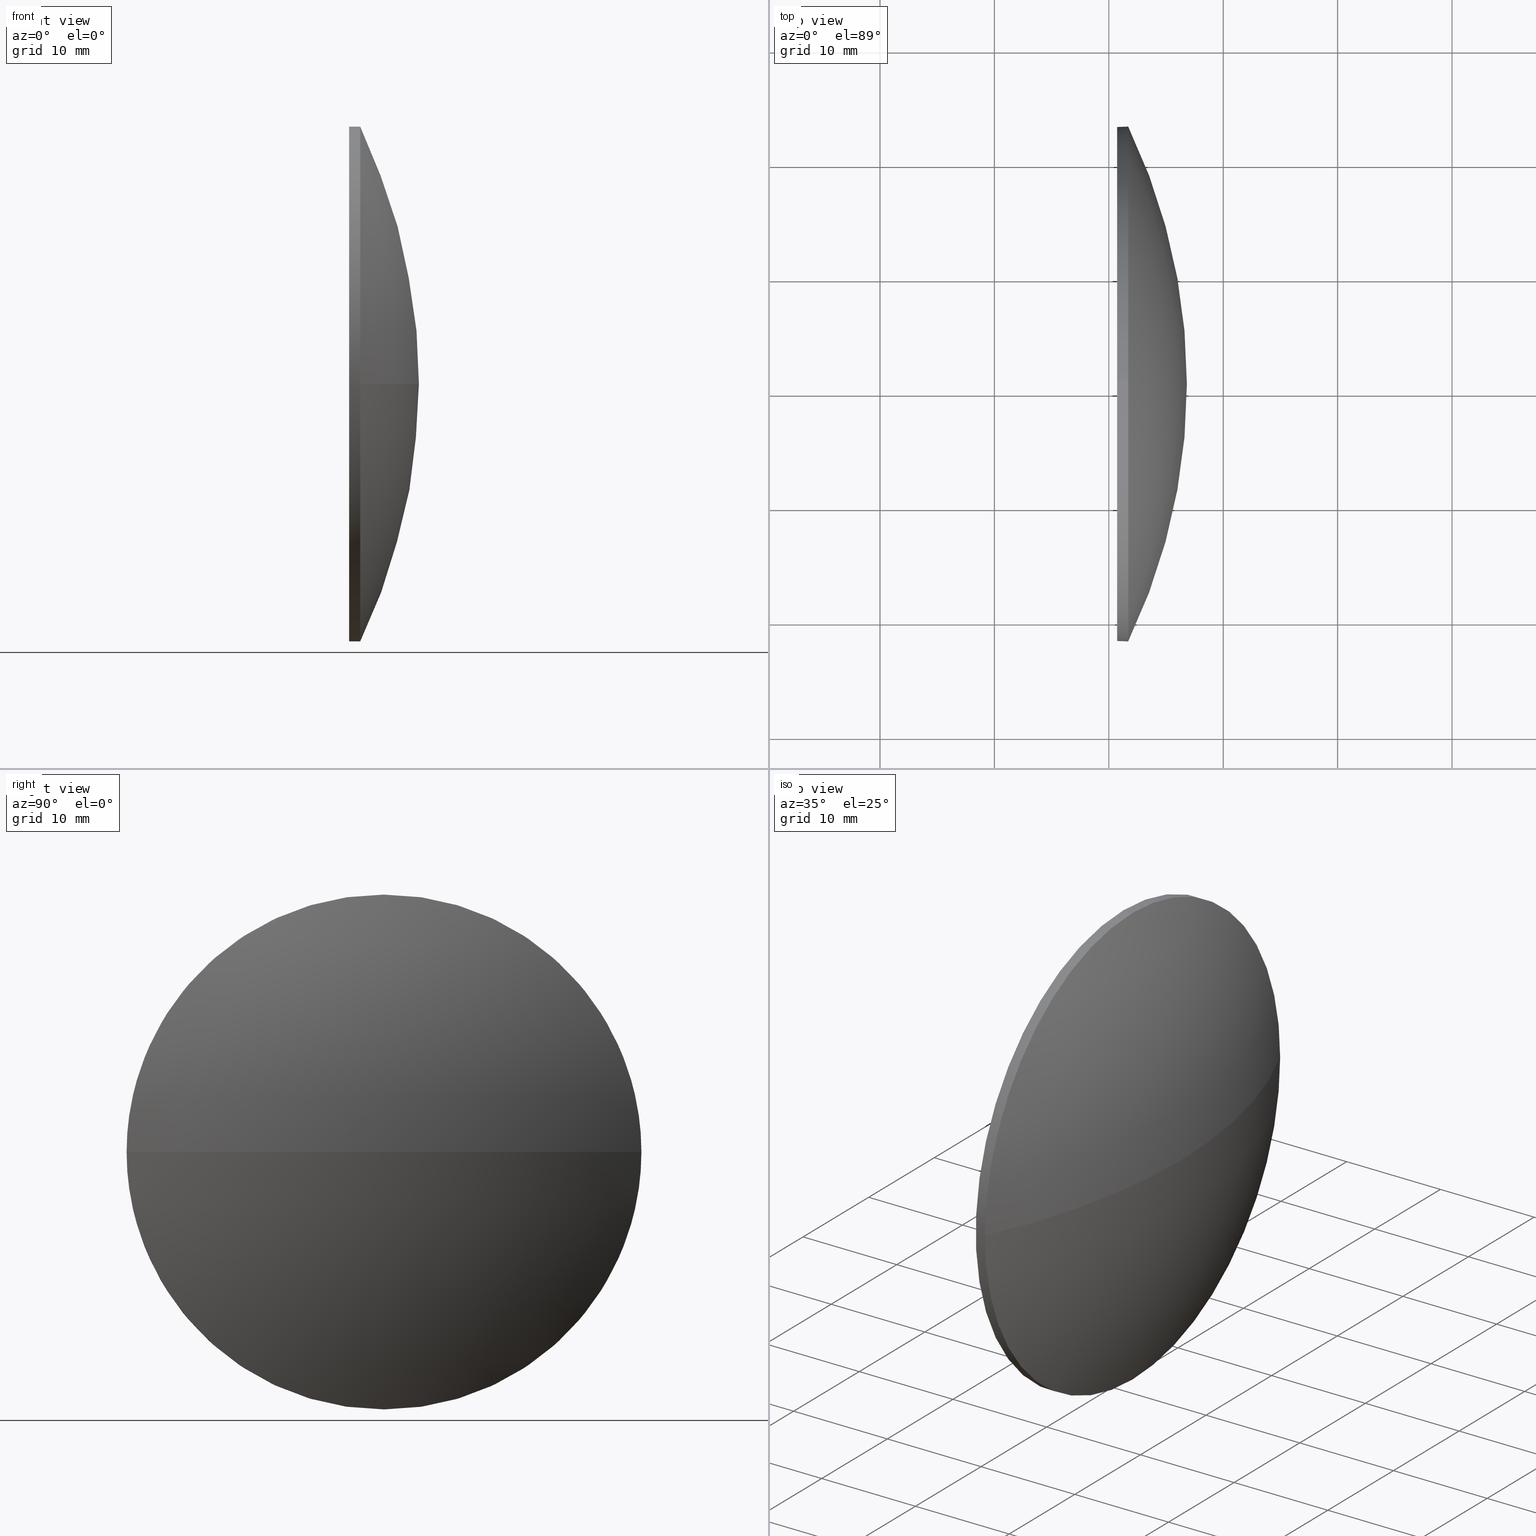
[diagram: canonical four-view strip — front | top / right | iso, engineering-drawing reading convention]
A machine part, canonical four-view strip (front | top / right | iso — engineering-drawing reading convention). The complete STEP part file that produces these views, byte-faithful:
ISO-10303-21;
HEADER;
FILE_DESCRIPTION (( 'STEP AP214' ),
    '1' );
FILE_NAME ('100064.STEP',
    '2019-04-30T06:17:27',
    ( '' ),
    ( '' ),
    'SwSTEP 2.0',
    'SolidWorks 2016',
    '' );
FILE_SCHEMA (( 'AUTOMOTIVE_DESIGN' ));
ENDSEC;

DATA;
#1 = ORIENTED_EDGE ( 'NONE', *, *, #79, .T. ) ;
#2 = AXIS2_PLACEMENT_3D ( 'NONE', #32, #66, #127 ) ;
#3 =( NAMED_UNIT ( * ) SI_UNIT ( $, .STERADIAN. ) SOLID_ANGLE_UNIT ( ) );
#4 = ORIENTED_EDGE ( 'NONE', *, *, #118, .F. ) ;
#5 = CARTESIAN_POINT ( 'NONE',  ( 344.9172647504589700, 50.66319577228509300, 0.0000000000000000000 ) ) ;
#6 = CARTESIAN_POINT ( 'NONE',  ( 391.6943700136168900, 50.66319577228512100, 0.0000000000000000000 ) ) ;
#7 = DIRECTION ( 'NONE',  ( 0.0000000000000000000, 1.000000000000000000, 0.0000000000000000000 ) ) ;
#8 = DIRECTION ( 'NONE',  ( -0.0000000000000000000, 0.0000000000000000000, -1.000000000000000000 ) ) ;
#9 = MANIFOLD_SOLID_BREP ( '��ת1', #146 ) ;
#10 = SURFACE_STYLE_USAGE ( .BOTH. , #55 ) ;
#11 = MECHANICAL_DESIGN_GEOMETRIC_PRESENTATION_REPRESENTATION (  '', ( #98 ), #62 ) ;
#12 = APPLICATION_PROTOCOL_DEFINITION ( 'draft international standard', 'automotive_design', 1998, #140 ) ;
#13 = EDGE_CURVE ( 'NONE', #111, #160, #49, .T. ) ;
#14 = CIRCLE ( 'NONE', #169, 22.50000000000000700 ) ;
#15 = ORIENTED_EDGE ( 'NONE', *, *, #26, .T. ) ;
#16 = ORIENTED_EDGE ( 'NONE', *, *, #186, .F. ) ;
#17 = CARTESIAN_POINT ( 'NONE',  ( 390.7243700136168600, 50.66319577228512100, 22.50000000000000700 ) ) ;
#18 = EDGE_LOOP ( 'NONE', ( #152, #80, #71, #185 ) ) ;
#19 = VECTOR ( 'NONE', #23, 1000.000000000000000 ) ;
#20 = DIRECTION ( 'NONE',  ( -1.000000000000000000, -0.0000000000000000000, -0.0000000000000000000 ) ) ;
#21 = CARTESIAN_POINT ( 'NONE',  ( 391.6943700136168900, 50.66319577228512100, 0.0000000000000000000 ) ) ;
#22 = DIRECTION ( 'NONE',  ( 0.0000000000000000000, 0.0000000000000000000, 1.000000000000000000 ) ) ;
#23 = DIRECTION ( 'NONE',  ( -1.000000000000000000, -0.0000000000000000000, -0.0000000000000000000 ) ) ;
#24 = EDGE_LOOP ( 'NONE', ( #4, #1, #142, #60 ) ) ;
#25 = ORIENTED_EDGE ( 'NONE', *, *, #109, .F. ) ;
#26 = EDGE_CURVE ( 'NONE', #39, #116, #157, .T. ) ;
#27 = PRODUCT_DEFINITION_SHAPE ( 'NONE', 'NONE',  #31 ) ;
#28 = SURFACE_STYLE_USAGE ( .BOTH. , #124 ) ;
#29 = FILL_AREA_STYLE_COLOUR ( '', #46 ) ;
#30 = SURFACE_STYLE_FILL_AREA ( #151 ) ;
#31 = PRODUCT_DEFINITION ( 'δ֪', '', #180, #172 ) ;
#32 = CARTESIAN_POINT ( 'NONE',  ( 381.2895901284637100, 50.66319577228512100, 0.0000000000000000000 ) ) ;
#33 = DIRECTION ( 'NONE',  ( 0.0000000000000000000, 1.000000000000000000, 0.0000000000000000000 ) ) ;
#34 = DIRECTION ( 'NONE',  ( 0.0000000000000000000, 0.0000000000000000000, 1.000000000000000000 ) ) ;
#35 = ORIENTED_EDGE ( 'NONE', *, *, #186, .T. ) ;
#36 = DIRECTION ( 'NONE',  ( 0.0000000000000000000, 0.0000000000000000000, 1.000000000000000000 ) ) ;
#37 = AXIS2_PLACEMENT_3D ( 'NONE', #155, #70, #42 ) ;
#38 = CARTESIAN_POINT ( 'NONE',  ( 381.2895901284637100, 50.66319577228512100, 0.0000000000000000000 ) ) ;
#39 = VERTEX_POINT ( 'NONE', #85 ) ;
#40 = DIRECTION ( 'NONE',  ( 0.0000000000000000000, 0.0000000000000000000, -1.000000000000000000 ) ) ;
#41 = CYLINDRICAL_SURFACE ( 'NONE', #134, 22.50000000000000700 ) ;
#42 = DIRECTION ( 'NONE',  ( 0.0000000000000000000, 0.0000000000000000000, 1.000000000000000000 ) ) ;
#43 = EDGE_CURVE ( 'NONE', #107, #111, #14, .T. ) ;
#44 =( GEOMETRIC_REPRESENTATION_CONTEXT ( 3 ) GLOBAL_UNCERTAINTY_ASSIGNED_CONTEXT ( ( #74 ) ) GLOBAL_UNIT_ASSIGNED_CONTEXT ( ( #141, #57, #181 ) ) REPRESENTATION_CONTEXT ( 'NONE', 'WORKASPACE' ) );
#45 = VERTEX_POINT ( 'NONE', #17 ) ;
#46 = COLOUR_RGB ( '',1.000000000000000000, 1.000000000000000000, 1.000000000000000000 ) ;
#47 =( GEOMETRIC_REPRESENTATION_CONTEXT ( 3 ) GLOBAL_UNCERTAINTY_ASSIGNED_CONTEXT ( ( #64 ) ) GLOBAL_UNIT_ASSIGNED_CONTEXT ( ( #86, #153, #182 ) ) REPRESENTATION_CONTEXT ( 'NONE', 'WORKASPACE' ) );
#48 = STYLED_ITEM ( 'NONE', ( #165 ), #89 ) ;
#49 = CIRCLE ( 'NONE', #125, 22.50000000000000700 ) ;
#50 = PRESENTATION_LAYER_ASSIGNMENT (  '', '', ( #98 ) ) ;
#51 = DIRECTION ( 'NONE',  ( 0.0000000000000000000, 0.0000000000000000000, 1.000000000000000000 ) ) ;
#52 = ADVANCED_FACE ( 'NONE', ( #61 ), #41, .T. ) ;
#53 = CARTESIAN_POINT ( 'NONE',  ( 344.9172647504589700, 50.66319577228509300, 0.0000000000000000000 ) ) ;
#54 = CARTESIAN_POINT ( 'NONE',  ( 396.8243700136169400, 50.66319577228509300, 0.0000000000000000000 ) ) ;
#55 = SURFACE_SIDE_STYLE ('',( #30 ) ) ;
#56 = AXIS2_PLACEMENT_3D ( 'NONE', #100, #166, #40 ) ;
#57 =( NAMED_UNIT ( * ) PLANE_ANGLE_UNIT ( ) SI_UNIT ( $, .RADIAN. ) );
#58 = DIRECTION ( 'NONE',  ( 1.000000000000000000, 0.0000000000000000000, 0.0000000000000000000 ) ) ;
#59 = PRODUCT_RELATED_PRODUCT_CATEGORY ( 'part', '', ( #93 ) ) ;
#60 = ORIENTED_EDGE ( 'NONE', *, *, #106, .F. ) ;
#61 = FACE_OUTER_BOUND ( 'NONE', #82, .T. ) ;
#62 =( GEOMETRIC_REPRESENTATION_CONTEXT ( 3 ) GLOBAL_UNCERTAINTY_ASSIGNED_CONTEXT ( ( #81 ) ) GLOBAL_UNIT_ASSIGNED_CONTEXT ( ( #123, #136, #3 ) ) REPRESENTATION_CONTEXT ( 'NONE', 'WORKASPACE' ) );
#63 = PRESENTATION_LAYER_ASSIGNMENT (  '', '', ( #48 ) ) ;
#64 = UNCERTAINTY_MEASURE_WITH_UNIT (LENGTH_MEASURE( 1.000000000000000100E-005 ), #86, 'distance_accuracy_value', 'NONE');
#65 = DIRECTION ( 'NONE',  ( -1.000000000000000000, -0.0000000000000000000, -0.0000000000000000000 ) ) ;
#66 = DIRECTION ( 'NONE',  ( -1.000000000000000000, -0.0000000000000000000, -0.0000000000000000000 ) ) ;
#67 = EDGE_CURVE ( 'NONE', #39, #107, #159, .T. ) ;
#68 = AXIS2_PLACEMENT_3D ( 'NONE', #103, #22, #58 ) ;
#69 = CARTESIAN_POINT ( 'NONE',  ( 344.9172647504589700, 50.66319577228509300, 0.0000000000000000000 ) ) ;
#70 = DIRECTION ( 'NONE',  ( -1.000000000000000000, -0.0000000000000000000, -0.0000000000000000000 ) ) ;
#71 = ORIENTED_EDGE ( 'NONE', *, *, #13, .F. ) ;
#72 = COLOUR_RGB ( '',1.000000000000000000, 1.000000000000000000, 1.000000000000000000 ) ;
#73 = FILL_AREA_STYLE_COLOUR ( '', #72 ) ;
#74 = UNCERTAINTY_MEASURE_WITH_UNIT (LENGTH_MEASURE( 1.000000000000000100E-005 ), #141, 'distance_accuracy_value', 'NONE');
#75 = MECHANICAL_DESIGN_GEOMETRIC_PRESENTATION_REPRESENTATION (  '', ( #48 ), #47 ) ;
#76 = PRESENTATION_STYLE_ASSIGNMENT (( #28 ) ) ;
#77 = VERTEX_POINT ( 'NONE', #54 ) ;
#78 = FACE_OUTER_BOUND ( 'NONE', #130, .T. ) ;
#79 = EDGE_CURVE ( 'NONE', #77, #107, #131, .T. ) ;
#80 = ORIENTED_EDGE ( 'NONE', *, *, #118, .T. ) ;
#81 = UNCERTAINTY_MEASURE_WITH_UNIT (LENGTH_MEASURE( 1.000000000000000100E-005 ), #123, 'distance_accuracy_value', 'NONE');
#82 = EDGE_LOOP ( 'NONE', ( #168, #183, #121, #133, #25 ) ) ;
#83 = SPHERICAL_SURFACE ( 'NONE', #184, 51.90710526315794500 ) ;
#84 = CARTESIAN_POINT ( 'NONE',  ( 391.6943700136168900, 28.16319577228507900, -2.755455298081546000E-015 ) ) ;
#85 = CARTESIAN_POINT ( 'NONE',  ( 391.6943700136168900, 50.66319577228512100, -22.50000000000000700 ) ) ;
#86 =( LENGTH_UNIT ( ) NAMED_UNIT ( * ) SI_UNIT ( .MILLI., .METRE. ) );
#87 = FACE_OUTER_BOUND ( 'NONE', #24, .T. ) ;
#88 = APPLICATION_PROTOCOL_DEFINITION ( 'draft international standard', 'automotive_design', 1998, #102 ) ;
#89 = ADVANCED_BREP_SHAPE_REPRESENTATION ( '100064', ( #9, #68 ), #44 ) ;
#90 = ADVANCED_FACE ( 'NONE', ( #156 ), #154, .T. ) ;
#91 = VECTOR ( 'NONE', #135, 1000.000000000000000 ) ;
#92 = AXIS2_PLACEMENT_3D ( 'NONE', #6, #128, #139 ) ;
#93 = PRODUCT ( '100064', '100064', '', ( #167 ) ) ;
#94 = CARTESIAN_POINT ( 'NONE',  ( 381.2895901284637100, 50.66319577228512100, -22.50000000000000700 ) ) ;
#95 = ORIENTED_EDGE ( 'NONE', *, *, #13, .T. ) ;
#96 = DIRECTION ( 'NONE',  ( 0.0000000000000000000, 0.0000000000000000000, 1.000000000000000000 ) ) ;
#97 = DIRECTION ( 'NONE',  ( 0.0000000000000000000, 1.000000000000000000, 1.224646799147353000E-016 ) ) ;
#98 = STYLED_ITEM ( 'NONE', ( #76 ), #9 ) ;
#99 = DIRECTION ( 'NONE',  ( 1.000000000000000000, 0.0000000000000000000, 0.0000000000000000000 ) ) ;
#100 = CARTESIAN_POINT ( 'NONE',  ( 390.7243700136168600, 50.66319577228512100, 0.0000000000000000000 ) ) ;
#101 = ADVANCED_FACE ( 'NONE', ( #87 ), #108, .T. ) ;
#102 = APPLICATION_CONTEXT ( 'automotive_design' ) ;
#103 = CARTESIAN_POINT ( 'NONE',  ( 0.0000000000000000000, 0.0000000000000000000, 0.0000000000000000000 ) ) ;
#104 = CIRCLE ( 'NONE', #144, 22.50000000000000700 ) ;
#105 = AXIS2_PLACEMENT_3D ( 'NONE', #115, #176, #51 ) ;
#106 = EDGE_CURVE ( 'NONE', #160, #39, #104, .T. ) ;
#107 = VERTEX_POINT ( 'NONE', #84 ) ;
#108 = SPHERICAL_SURFACE ( 'NONE', #158, 51.90710526315794500 ) ;
#109 = EDGE_CURVE ( 'NONE', #116, #45, #162, .T. ) ;
#110 = FILL_AREA_STYLE ('',( #29 ) ) ;
#111 = VERTEX_POINT ( 'NONE', #164 ) ;
#112 = ORIENTED_EDGE ( 'NONE', *, *, #109, .T. ) ;
#113 = DIRECTION ( 'NONE',  ( -0.0000000000000000000, 0.0000000000000000000, -1.000000000000000000 ) ) ;
#114 = DIRECTION ( 'NONE',  ( 0.0000000000000000000, 1.224646799147353200E-016, -1.000000000000000000 ) ) ;
#115 = CARTESIAN_POINT ( 'NONE',  ( 390.7243700136168600, 50.66319577228512100, 0.0000000000000000000 ) ) ;
#116 = VERTEX_POINT ( 'NONE', #178 ) ;
#117 = CARTESIAN_POINT ( 'NONE',  ( 391.6943700136168900, 73.16319577228513500, 0.0000000000000000000 ) ) ;
#118 = EDGE_CURVE ( 'NONE', #77, #160, #171, .T. ) ;
#119 = ADVANCED_FACE ( 'NONE', ( #174 ), #83, .T. ) ;
#120 = CIRCLE ( 'NONE', #37, 22.50000000000000700 ) ;
#121 = ORIENTED_EDGE ( 'NONE', *, *, #43, .T. ) ;
#122 = LINE ( 'NONE', #143, #19 ) ;
#123 =( LENGTH_UNIT ( ) NAMED_UNIT ( * ) SI_UNIT ( .MILLI., .METRE. ) );
#124 = SURFACE_SIDE_STYLE ('',( #145 ) ) ;
#125 = AXIS2_PLACEMENT_3D ( 'NONE', #21, #147, #36 ) ;
#126 = EDGE_LOOP ( 'NONE', ( #132, #15, #16, #173, #95 ) ) ;
#127 = DIRECTION ( 'NONE',  ( 0.0000000000000000000, 0.0000000000000000000, 1.000000000000000000 ) ) ;
#128 = DIRECTION ( 'NONE',  ( -1.000000000000000000, -0.0000000000000000000, -0.0000000000000000000 ) ) ;
#129 = PLANE ( 'NONE',  #56 ) ;
#130 = EDGE_LOOP ( 'NONE', ( #35, #112 ) ) ;
#131 = CIRCLE ( 'NONE', #138, 51.90710526315795200 ) ;
#132 = ORIENTED_EDGE ( 'NONE', *, *, #106, .T. ) ;
#133 = ORIENTED_EDGE ( 'NONE', *, *, #149, .T. ) ;
#134 = AXIS2_PLACEMENT_3D ( 'NONE', #38, #148, #34 ) ;
#135 = DIRECTION ( 'NONE',  ( -1.000000000000000000, -0.0000000000000000000, -0.0000000000000000000 ) ) ;
#136 =( NAMED_UNIT ( * ) PLANE_ANGLE_UNIT ( ) SI_UNIT ( $, .RADIAN. ) );
#137 = AXIS2_PLACEMENT_3D ( 'NONE', #53, #150, #99 ) ;
#138 = AXIS2_PLACEMENT_3D ( 'NONE', #177, #114, #97 ) ;
#139 = DIRECTION ( 'NONE',  ( 0.0000000000000000000, 0.0000000000000000000, 1.000000000000000000 ) ) ;
#140 = APPLICATION_CONTEXT ( 'automotive_design' ) ;
#141 =( LENGTH_UNIT ( ) NAMED_UNIT ( * ) SI_UNIT ( .MILLI., .METRE. ) );
#142 = ORIENTED_EDGE ( 'NONE', *, *, #67, .F. ) ;
#143 = CARTESIAN_POINT ( 'NONE',  ( 381.2895901284637100, 50.66319577228512100, 22.50000000000000700 ) ) ;
#144 = AXIS2_PLACEMENT_3D ( 'NONE', #175, #65, #161 ) ;
#145 = SURFACE_STYLE_FILL_AREA ( #110 ) ;
#146 = CLOSED_SHELL ( 'NONE', ( #90, #101, #119, #52, #163 ) ) ;
#147 = DIRECTION ( 'NONE',  ( -1.000000000000000000, -0.0000000000000000000, -0.0000000000000000000 ) ) ;
#148 = DIRECTION ( 'NONE',  ( -1.000000000000000000, -0.0000000000000000000, -0.0000000000000000000 ) ) ;
#149 = EDGE_CURVE ( 'NONE', #111, #45, #122, .T. ) ;
#150 = DIRECTION ( 'NONE',  ( -0.0000000000000000000, 0.0000000000000000000, 1.000000000000000000 ) ) ;
#151 = FILL_AREA_STYLE ('',( #73 ) ) ;
#152 = ORIENTED_EDGE ( 'NONE', *, *, #79, .F. ) ;
#153 =( NAMED_UNIT ( * ) PLANE_ANGLE_UNIT ( ) SI_UNIT ( $, .RADIAN. ) );
#154 = CYLINDRICAL_SURFACE ( 'NONE', #2, 22.50000000000000700 ) ;
#155 = CARTESIAN_POINT ( 'NONE',  ( 390.7243700136168600, 50.66319577228512100, 0.0000000000000000000 ) ) ;
#156 = FACE_OUTER_BOUND ( 'NONE', #126, .T. ) ;
#157 = LINE ( 'NONE', #94, #91 ) ;
#158 = AXIS2_PLACEMENT_3D ( 'NONE', #5, #113, #7 ) ;
#159 = CIRCLE ( 'NONE', #92, 22.50000000000000700 ) ;
#160 = VERTEX_POINT ( 'NONE', #117 ) ;
#161 = DIRECTION ( 'NONE',  ( 0.0000000000000000000, 0.0000000000000000000, 1.000000000000000000 ) ) ;
#162 = CIRCLE ( 'NONE', #105, 22.50000000000000700 ) ;
#163 = ADVANCED_FACE ( 'NONE', ( #78 ), #129, .F. ) ;
#164 = CARTESIAN_POINT ( 'NONE',  ( 391.6943700136168900, 50.66319577228512100, 22.50000000000000700 ) ) ;
#165 = PRESENTATION_STYLE_ASSIGNMENT (( #10 ) ) ;
#166 = DIRECTION ( 'NONE',  ( 1.000000000000000000, 0.0000000000000000000, 0.0000000000000000000 ) ) ;
#167 = PRODUCT_CONTEXT ( 'NONE', #140, 'mechanical' ) ;
#168 = ORIENTED_EDGE ( 'NONE', *, *, #26, .F. ) ;
#169 = AXIS2_PLACEMENT_3D ( 'NONE', #179, #20, #96 ) ;
#170 = SHAPE_DEFINITION_REPRESENTATION ( #27, #89 ) ;
#171 = CIRCLE ( 'NONE', #137, 51.90710526315795200 ) ;
#172 = PRODUCT_DEFINITION_CONTEXT ( 'detailed design', #102, 'design' ) ;
#173 = ORIENTED_EDGE ( 'NONE', *, *, #149, .F. ) ;
#174 = FACE_OUTER_BOUND ( 'NONE', #18, .T. ) ;
#175 = CARTESIAN_POINT ( 'NONE',  ( 391.6943700136168900, 50.66319577228512100, 0.0000000000000000000 ) ) ;
#176 = DIRECTION ( 'NONE',  ( -1.000000000000000000, -0.0000000000000000000, -0.0000000000000000000 ) ) ;
#177 = CARTESIAN_POINT ( 'NONE',  ( 344.9172647504589700, 50.66319577228509300, 0.0000000000000000000 ) ) ;
#178 = CARTESIAN_POINT ( 'NONE',  ( 390.7243700136168600, 50.66319577228512100, -22.50000000000000700 ) ) ;
#179 = CARTESIAN_POINT ( 'NONE',  ( 391.6943700136168900, 50.66319577228512100, 0.0000000000000000000 ) ) ;
#180 = PRODUCT_DEFINITION_FORMATION_WITH_SPECIFIED_SOURCE ( '�κ�', '', #93, .NOT_KNOWN. ) ;
#181 =( NAMED_UNIT ( * ) SI_UNIT ( $, .STERADIAN. ) SOLID_ANGLE_UNIT ( ) );
#182 =( NAMED_UNIT ( * ) SI_UNIT ( $, .STERADIAN. ) SOLID_ANGLE_UNIT ( ) );
#183 = ORIENTED_EDGE ( 'NONE', *, *, #67, .T. ) ;
#184 = AXIS2_PLACEMENT_3D ( 'NONE', #69, #8, #33 ) ;
#185 = ORIENTED_EDGE ( 'NONE', *, *, #43, .F. ) ;
#186 = EDGE_CURVE ( 'NONE', #45, #116, #120, .T. ) ;
ENDSEC;
END-ISO-10303-21;
